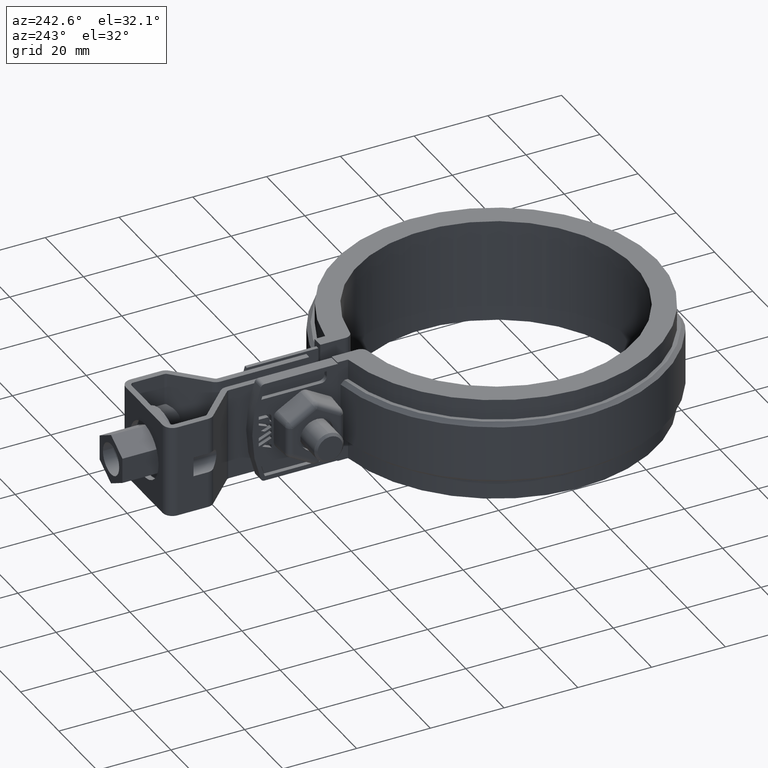
[diagram: clean part render]
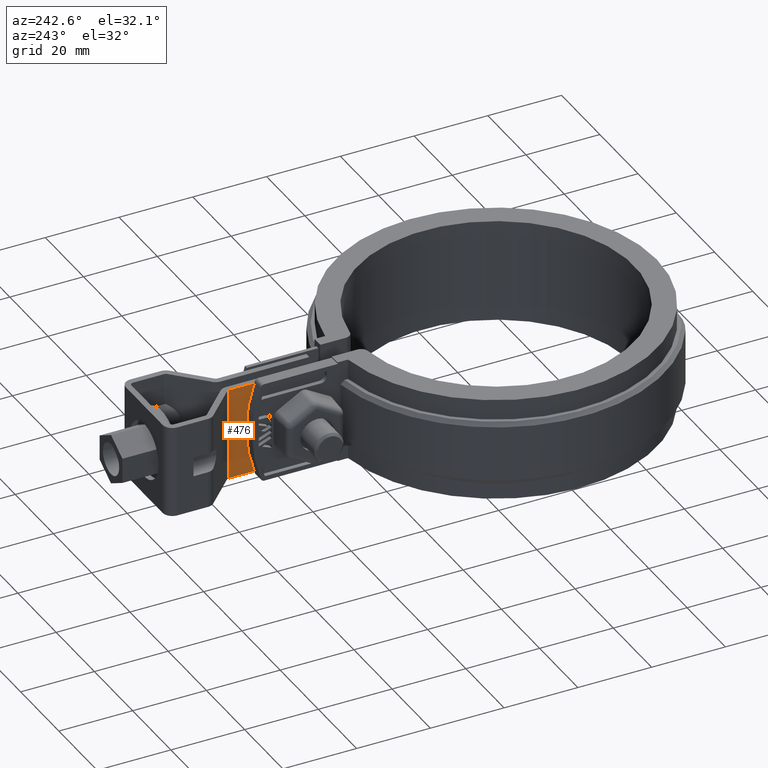
[diagram: same view with one face highlighted and labeled with its STEP entity id]
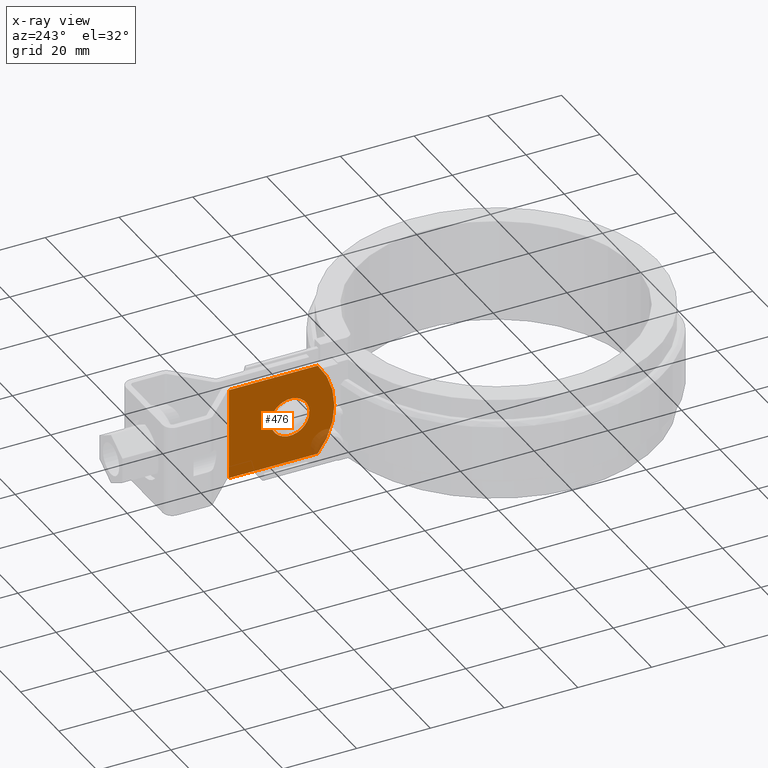
[diagram: x-ray of the same camera — body ghosted, the highlighted face saturated]
A machine part, auxiliary view. The second image highlights one B-rep face of the part: STEP entity #476.
The next image is the same camera in x-ray: the body ghosted, the highlighted face saturated — about 3% of this face is hidden behind the body in this view.
In plain terms, the highlighted planar face has unit normal (-1, 0, -0).
Its self-contained STEP definition (entity closure, byte-faithful):
#476 = ADVANCED_FACE( '', ( #904, #905 ), #906, .T. );
#904 = FACE_BOUND( '', #1820, .T. );
#905 = FACE_OUTER_BOUND( '', #1821, .T. );
#906 = PLANE( '', #1822 );
#1820 = EDGE_LOOP( '', ( #3755 ) );
#1821 = EDGE_LOOP( '', ( #3756, #3757, #3758, #3759 ) );
#1822 = AXIS2_PLACEMENT_3D( '', #3760, #3761, #3762 );
#3755 = ORIENTED_EDGE( '', *, *, #5661, .T. );
#3756 = ORIENTED_EDGE( '', *, *, #5604, .F. );
#3757 = ORIENTED_EDGE( '', *, *, #5652, .T. );
#3758 = ORIENTED_EDGE( '', *, *, #5662, .T. );
#3759 = ORIENTED_EDGE( '', *, *, #5659, .T. );
#3760 = CARTESIAN_POINT( '', ( -2.99999999999643, 74.3707139191503, -12.4999999999967 ) );
#3761 = DIRECTION( '', ( -1.00000000000000, 2.98132751366910E-015, -3.05190331212980E-014 ) );
#3762 = DIRECTION( '', ( 2.98132751366823E-015, 1.00000000000000, 2.84772205816504E-014 ) );
#5604 = EDGE_CURVE( '', #6631, #6633, #6634, .T. );
#5652 = EDGE_CURVE( '', #6631, #6709, #6712, .F. );
#5659 = EDGE_CURVE( '', #6719, #6633, #6723, .T. );
#5661 = EDGE_CURVE( '', #6726, #6726, #6727, .F. );
#5662 = EDGE_CURVE( '', #6709, #6719, #6728, .T. );
#6631 = VERTEX_POINT( '', #9233 );
#6633 = VERTEX_POINT( '', #9235 );
#6634 = LINE( '', #9236, #9237 );
#6709 = VERTEX_POINT( '', #9367 );
#6712 = LINE( '', #9370, #9371 );
#6719 = VERTEX_POINT( '', #9381 );
#6723 = CIRCLE( '', #9386, 19.6111110000000 );
#6726 = VERTEX_POINT( '', #9389 );
#6727 = CIRCLE( '', #9390, 5.25000000000000 );
#6728 = LINE( '', #9391, #9392 );
#9233 = CARTESIAN_POINT( '', ( -2.99999999999720, 73.9492501502595, 12.5000000000032 ) );
#9235 = CARTESIAN_POINT( '', ( -2.99999999999729, 49.8951037837189, 12.5000000059159 ) );
#9236 = CARTESIAN_POINT( '', ( -2.99999999999720, 74.3707139191495, 12.5000000000033 ) );
#9237 = VECTOR( '', #11045, 1000.00000000000 );
#9367 = CARTESIAN_POINT( '', ( -2.99999999999644, 73.9492501502602, -12.4999999999967 ) );
#9370 = CARTESIAN_POINT( '', ( -2.99999999999644, 73.9492501502602, -12.4999999999967 ) );
#9371 = VECTOR( '', #11117, 1000.00000000000 );
#9381 = CARTESIAN_POINT( '', ( -2.99999999999650, 49.8951037788281, -12.4999999999974 ) );
#9386 = AXIS2_PLACEMENT_3D( '', #11128, #11129, #11130 );
#9389 = CARTESIAN_POINT( '', ( -2.99999999999685, 62.6451037457395, 2.93894075742437E-012 ) );
#9390 = AXIS2_PLACEMENT_3D( '', #11134, #11135, #11136 );
#9391 = CARTESIAN_POINT( '', ( -2.99999999999643, 74.3707139191503, -12.4999999999967 ) );
#9392 = VECTOR( '', #11137, 1000.00000000000 );
#11045 = DIRECTION( '', ( -2.64826060628068E-015, -1.00000000000000, -2.84772205816504E-014 ) );
#11117 = DIRECTION( '', ( -3.05190331212981E-014, -2.85369574741963E-014, 1.00000000000000 ) );
#11128 = CARTESIAN_POINT( '', ( -2.99999999999684, 65.0062147457395, 3.03923552991137E-012 ) );
#11129 = DIRECTION( '', ( -1.00000000000000, 2.98132751366910E-015, -3.05190331212980E-014 ) );
#11130 = DIRECTION( '', ( 2.98132751366823E-015, 1.00000000000000, 2.84772205816504E-014 ) );
#11134 = CARTESIAN_POINT( '', ( -2.99999999999687, 57.3951037457395, 2.78943534937071E-012 ) );
#11135 = DIRECTION( '', ( -1.00000000000000, 2.98132751366910E-015, -3.05190331212980E-014 ) );
#11136 = DIRECTION( '', ( 2.98132751366823E-015, 1.00000000000000, 2.84772205816504E-014 ) );
#11137 = DIRECTION( '', ( -2.64826060628068E-015, -1.00000000000000, -2.84772205816504E-014 ) );